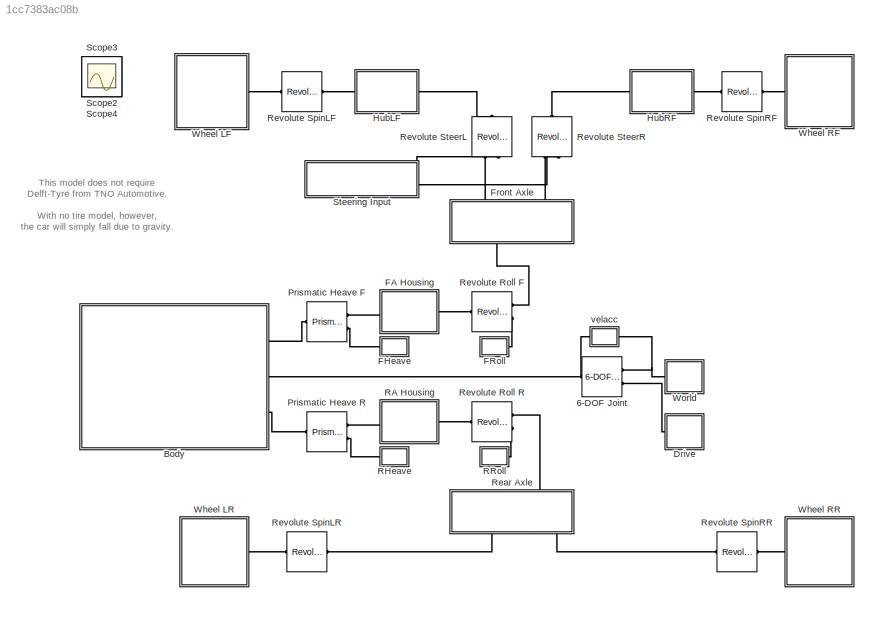
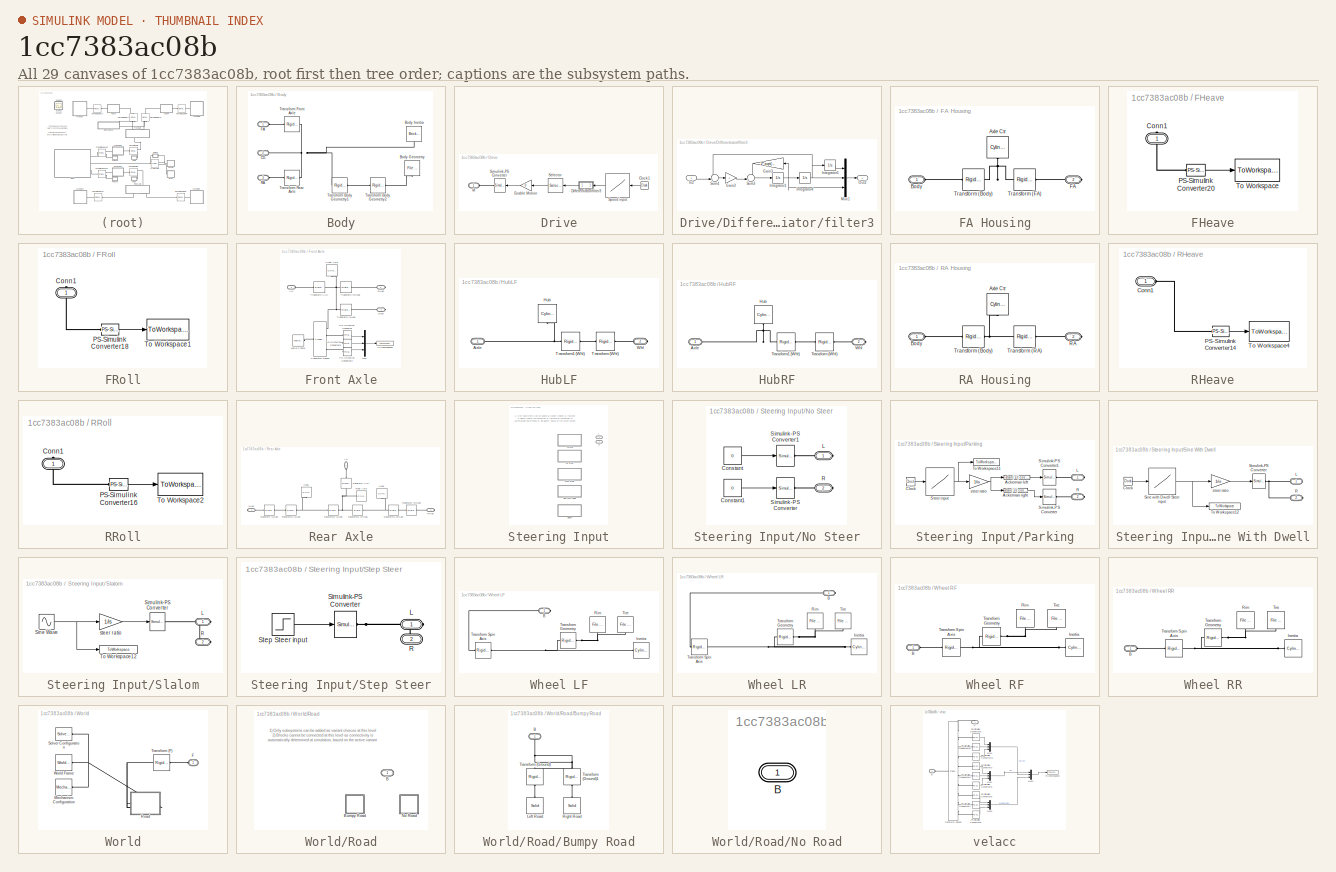
[diagram: thumbnail index - all 29 canvases of the model, root first then tree order]
MODEL slx_1cc7383ac08b
KIND model
CONFIG AbsTol = 1e-4
CONFIG EnableMultiTasking = on
CONFIG FixedStep = auto
CONFIG MaxStep = 0.01
CONFIG MinStep = auto
CONFIG PostLoadFcn = Configure_TNO_Tire_Test('handling');
CONFIG RelTol = 1e-4
CONFIG SampleTimeConstraint = Unconstrained
CONFIG Solver = ode15s
CONFIG SolverName = ode15s
CONFIG StartTime = 0.0
CONFIG StopTime = 10
BLOCK [Reference] 6-DOF Joint  REF=sm_lib/Joints/6-DOF Joint
  Ports = [0, 0, 0, 0, 0, 2, 1]
  SourceBlock = sm_lib/Joints/6-DOF Joint
  SourceProductBaseCode = MS
  SourceProductName = Simscape Multibody
  SourceType = 6-DOF Joint
BLOCK [SubSystem] Body
  Ports = [0, 0, 0, 0, 0, 3]
  RequestExecContextInheritance = off
BLOCK [Reference] Body/Body Geometry  REF=sm_lib/Body Elements/File Solid
  Ports = [0, 0, 0, 0, 0, 0, 1]
  SourceBlock = sm_lib/Body Elements/File Solid
  SourceProductBaseCode = MS
  SourceProductName = Simscape Multibody
  SourceType = File Solid
BLOCK [Reference] Body/Body Inertia  REF=sm_lib/Body Elements/Brick Solid
  Ports = [0, 0, 0, 0, 0, 0, 1]
  SourceBlock = sm_lib/Body Elements/Brick Solid
  SourceProductBaseCode = MS
  SourceProductName = Simscape Multibody
  SourceType = Brick Solid
BLOCK [PMIOPort] Body/CG
  Port = 2
  Side = Left
BLOCK [PMIOPort] Body/FA
  Side = Left
BLOCK [PMIOPort] Body/RA
  Port = 3
  Side = Left
BLOCK [Reference] Body/Transform Body Geometry1  REF=sm_lib/Frames and
Transforms/Rigid
Transform
  Ports = [0, 0, 0, 0, 0, 1, 1]
  SourceBlock = sm_lib/Frames and\nTransforms/Rigid\nTransform
  SourceProductBaseCode = MS
  SourceProductName = Simscape Multibody
  SourceType = Rigid\nTransform
BLOCK [Reference] Body/Transform Body Geometry2  REF=sm_lib/Frames and
Transforms/Rigid
Transform
  Ports = [0, 0, 0, 0, 0, 1, 1]
  SourceBlock = sm_lib/Frames and\nTransforms/Rigid\nTransform
  SourceProductBaseCode = MS
  SourceProductName = Simscape Multibody
  SourceType = Rigid\nTransform
BLOCK [Reference] Body/Transform Front Axle  REF=sm_lib/Frames and
Transforms/Rigid
Transform
  Ports = [0, 0, 0, 0, 0, 1, 1]
  SourceBlock = sm_lib/Frames and\nTransforms/Rigid\nTransform
  SourceProductBaseCode = MS
  SourceProductName = Simscape Multibody
  SourceType = Rigid\nTransform
BLOCK [Reference] Body/Transform Rear Axle  REF=sm_lib/Frames and
Transforms/Rigid
Transform
  Ports = [0, 0, 0, 0, 0, 1, 1]
  SourceBlock = sm_lib/Frames and\nTransforms/Rigid\nTransform
  SourceProductBaseCode = MS
  SourceProductName = Simscape Multibody
  SourceType = Rigid\nTransform
BLOCK [SubSystem] Drive
  Ports = [0, 0, 0, 0, 0, 1]
  RequestExecContextInheritance = off
BLOCK [Clock] Drive/Clock1
BLOCK [SubSystem] Drive/Differentiator//filter3
  Ports = [1, 1]
  RequestExecContextInheritance = off
BLOCK [Gain] Drive/Differentiator//filter3/Gain2
  Gain = c
BLOCK [Gain] Drive/Differentiator//filter3/Gain3
  Gain = 2*sqrt(c)
BLOCK [Inport] Drive/Differentiator//filter3/In2
  IconDisplay = Port number
BLOCK [Integrator] Drive/Differentiator//filter3/Integrator1
  Ports = [1, 1]
BLOCK [Integrator] Drive/Differentiator//filter3/Integrator4
  Ports = [1, 1]
BLOCK [Integrator] Drive/Differentiator//filter3/Integrator5
  InitialCondition = -1.5
  Ports = [1, 1]
BLOCK [Mux] Drive/Differentiator//filter3/Mux1
  DisplayOption = bar
  Inputs = 3
  Ports = [3, 1]
BLOCK [Outport] Drive/Differentiator//filter3/Out2
  IconDisplay = Port number
BLOCK [Sum] Drive/Differentiator//filter3/Sum3
  IconShape = round
  InputSameDT = off
  Inputs = -+|
  OutDataTypeStr = Inherit: Inherit via internal rule
  Ports = [2, 1]
BLOCK [Sum] Drive/Differentiator//filter3/Sum4
  IconShape = round
  InputSameDT = off
  Inputs = -+|
  OutDataTypeStr = Inherit: Inherit via internal rule
  Ports = [2, 1]
BLOCK [Gain] Drive/Enable Motion
  Gain = 0
  OutDataTypeStr = Inherit: Inherit via internal rule
  ParamDataTypeStr = Inherit: Inherit via internal rule
  SaturateOnIntegerOverflow = off
BLOCK [PMIOPort] Drive/M
  Side = Left
BLOCK [Selector] Drive/Selector
  IndexOptions = Index vector (dialog)
  Indices = [1]
  InputPortWidth = 3
  OutputSizes = 1
  Ports = [1, 1]
BLOCK [Reference] Drive/Simulink-PS Converter  REF=nesl_utility/Simulink-PS
Converter
  Ports = [1, 0, 0, 0, 0, 0, 1]
  SourceBlock = nesl_utility/Simulink-PS\nConverter
  SourceProductBaseCode = SS
  SourceProductName = Simscape
  SourceType = Simulink-PS\nConverter
BLOCK [Lookup] Drive/Speed input
  InputValues = tvxset
  SaturateOnIntegerOverflow = off
  Table = vxset
BLOCK [SubSystem] FA Housing
  Ports = [0, 0, 0, 0, 0, 1, 1]
  RequestExecContextInheritance = off
BLOCK [Reference] FA Housing/Axle Ctr  REF=sm_lib/Body Elements/Cylindrical Solid
  Ports = [0, 0, 0, 0, 0, 0, 1]
  SourceBlock = sm_lib/Body Elements/Cylindrical Solid
  SourceProductBaseCode = MS
  SourceProductName = Simscape Multibody
  SourceType = Cylindrical Solid
BLOCK [PMIOPort] FA Housing/Body
  Side = Left
BLOCK [PMIOPort] FA Housing/FA
  Port = 2
  Side = Right
BLOCK [Reference] FA Housing/Transform (Body)  REF=sm_lib/Frames and
Transforms/Rigid
Transform
  Ports = [0, 0, 0, 0, 0, 1, 1]
  SourceBlock = sm_lib/Frames and\nTransforms/Rigid\nTransform
  SourceProductBaseCode = MS
  SourceProductName = Simscape Multibody
  SourceType = Rigid\nTransform
BLOCK [Reference] FA Housing/Transform (FA)  REF=sm_lib/Frames and
Transforms/Rigid
Transform
  Ports = [0, 0, 0, 0, 0, 1, 1]
  SourceBlock = sm_lib/Frames and\nTransforms/Rigid\nTransform
  SourceProductBaseCode = MS
  SourceProductName = Simscape Multibody
  SourceType = Rigid\nTransform
BLOCK [SubSystem] FHeave
  Ports = [0, 0, 0, 0, 0, 0, 1]
  RequestExecContextInheritance = off
BLOCK [PMIOPort] FHeave/Conn1
  Side = Right
BLOCK [Reference] FHeave/PS-Simulink Converter20  REF=nesl_utility/PS-Simulink
Converter
  Ports = [0, 1, 0, 0, 0, 1]
  SourceBlock = nesl_utility/PS-Simulink\nConverter
  SourceProductBaseCode = SS
  SourceProductName = Simscape
  SourceType = PS-Simulink\nConverter
BLOCK [ToWorkspace] FHeave/To Workspace
  MaxDataPoints = inf
  Ports = [1]
  SampleTime = -1
  VariableName = FAheave
BLOCK [SubSystem] FRoll
  Ports = [0, 0, 0, 0, 0, 0, 1]
  RequestExecContextInheritance = off
BLOCK [PMIOPort] FRoll/Conn1
  Side = Right
BLOCK [Reference] FRoll/PS-Simulink Converter18  REF=nesl_utility/PS-Simulink
Converter
  Ports = [0, 1, 0, 0, 0, 1]
  SourceBlock = nesl_utility/PS-Simulink\nConverter
  SourceProductBaseCode = SS
  SourceProductName = Simscape
  SourceType = PS-Simulink\nConverter
BLOCK [ToWorkspace] FRoll/To Workspace1
  MaxDataPoints = inf
  Ports = [1]
  SampleTime = -1
  VariableName = FAroll
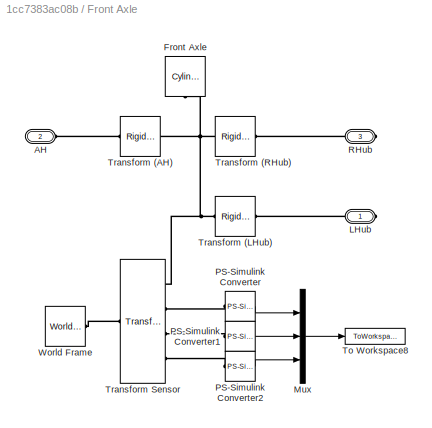
BLOCK [SubSystem] Front Axle
  Ports = [0, 0, 0, 0, 0, 1, 2]
  RequestExecContextInheritance = off
BLOCK [PMIOPort] Front Axle/AH
  Port = 2
  Side = Left
BLOCK [Reference] Front Axle/Front Axle  REF=sm_lib/Body Elements/Cylindrical Solid
  Ports = [0, 0, 0, 0, 0, 0, 1]
  SourceBlock = sm_lib/Body Elements/Cylindrical Solid
  SourceProductBaseCode = MS
  SourceProductName = Simscape Multibody
  SourceType = Cylindrical Solid
BLOCK [PMIOPort] Front Axle/LHub
  Side = Right
BLOCK [Mux] Front Axle/Mux
  DisplayOption = bar
  Inputs = 3
  Ports = [3, 1]
BLOCK [Reference] Front Axle/PS-Simulink Converter  REF=nesl_utility/PS-Simulink
Converter
  Ports = [0, 1, 0, 0, 0, 1]
  SourceBlock = nesl_utility/PS-Simulink\nConverter
  SourceProductBaseCode = SS
  SourceProductName = Simscape
  SourceType = PS-Simulink\nConverter
BLOCK [Reference] Front Axle/PS-Simulink Converter1  REF=nesl_utility/PS-Simulink
Converter
  Ports = [0, 1, 0, 0, 0, 1]
  SourceBlock = nesl_utility/PS-Simulink\nConverter
  SourceProductBaseCode = SS
  SourceProductName = Simscape
  SourceType = PS-Simulink\nConverter
BLOCK [Reference] Front Axle/PS-Simulink Converter2  REF=nesl_utility/PS-Simulink
Converter
  Ports = [0, 1, 0, 0, 0, 1]
  SourceBlock = nesl_utility/PS-Simulink\nConverter
  SourceProductBaseCode = SS
  SourceProductName = Simscape
  SourceType = PS-Simulink\nConverter
BLOCK [PMIOPort] Front Axle/RHub
  Port = 3
  Side = Right
BLOCK [ToWorkspace] Front Axle/To Workspace8
  MaxDataPoints = inf
  Ports = [1]
  SampleTime = -1
  VariableName = FA
BLOCK [Reference] Front Axle/Transform (AH)  REF=sm_lib/Frames and
Transforms/Rigid
Transform
  Ports = [0, 0, 0, 0, 0, 1, 1]
  SourceBlock = sm_lib/Frames and\nTransforms/Rigid\nTransform
  SourceProductBaseCode = MS
  SourceProductName = Simscape Multibody
  SourceType = Rigid\nTransform
BLOCK [Reference] Front Axle/Transform (LHub)  REF=sm_lib/Frames and
Transforms/Rigid
Transform
  Ports = [0, 0, 0, 0, 0, 1, 1]
  SourceBlock = sm_lib/Frames and\nTransforms/Rigid\nTransform
  SourceProductBaseCode = MS
  SourceProductName = Simscape Multibody
  SourceType = Rigid\nTransform
BLOCK [Reference] Front Axle/Transform (RHub)  REF=sm_lib/Frames and
Transforms/Rigid
Transform
  Ports = [0, 0, 0, 0, 0, 1, 1]
  SourceBlock = sm_lib/Frames and\nTransforms/Rigid\nTransform
  SourceProductBaseCode = MS
  SourceProductName = Simscape Multibody
  SourceType = Rigid\nTransform
BLOCK [Reference] Front Axle/Transform Sensor  REF=sm_lib/Frames and
Transforms/Transform
Sensor
  Ports = [0, 0, 0, 0, 0, 1, 4]
  SourceBlock = sm_lib/Frames and\nTransforms/Transform\nSensor
  SourceProductBaseCode = MS
  SourceProductName = Simscape Multibody
  SourceType = Transform\nSensor
BLOCK [Reference] Front Axle/World Frame  REF=sm_lib/Frames and
Transforms/World Frame
  Ports = [0, 0, 0, 0, 0, 0, 1]
  SourceBlock = sm_lib/Frames and\nTransforms/World Frame
  SourceProductBaseCode = MS
  SourceProductName = Simscape Multibody
  SourceType = World Frame
BLOCK [SubSystem] HubLF
  Ports = [0, 0, 0, 0, 0, 1, 1]
  RequestExecContextInheritance = off
BLOCK [PMIOPort] HubLF/Axle
  Side = Left
BLOCK [Reference] HubLF/Hub  REF=sm_lib/Body Elements/Cylindrical Solid
  Ports = [0, 0, 0, 0, 0, 0, 1]
  SourceBlock = sm_lib/Body Elements/Cylindrical Solid
  SourceProductBaseCode = MS
  SourceProductName = Simscape Multibody
  SourceType = Cylindrical Solid
BLOCK [Reference] HubLF/Transform (Whl)  REF=sm_lib/Frames and
Transforms/Rigid
Transform
  Ports = [0, 0, 0, 0, 0, 1, 1]
  SourceBlock = sm_lib/Frames and\nTransforms/Rigid\nTransform
  SourceProductBaseCode = MS
  SourceProductName = Simscape Multibody
  SourceType = Rigid\nTransform
BLOCK [Reference] HubLF/Transform1 (Whl)  REF=sm_lib/Frames and
Transforms/Rigid
Transform
  Ports = [0, 0, 0, 0, 0, 1, 1]
  SourceBlock = sm_lib/Frames and\nTransforms/Rigid\nTransform
  SourceProductBaseCode = MS
  SourceProductName = Simscape Multibody
  SourceType = Rigid\nTransform
BLOCK [PMIOPort] HubLF/Whl
  Port = 2
  Side = Right
BLOCK [SubSystem] HubRF
  Ports = [0, 0, 0, 0, 0, 1, 1]
  RequestExecContextInheritance = off
BLOCK [PMIOPort] HubRF/Axle
  Side = Left
BLOCK [Reference] HubRF/Hub  REF=sm_lib/Body Elements/Cylindrical Solid
  Ports = [0, 0, 0, 0, 0, 0, 1]
  SourceBlock = sm_lib/Body Elements/Cylindrical Solid
  SourceProductBaseCode = MS
  SourceProductName = Simscape Multibody
  SourceType = Cylindrical Solid
BLOCK [Reference] HubRF/Transform (Whl)  REF=sm_lib/Frames and
Transforms/Rigid
Transform
  Ports = [0, 0, 0, 0, 0, 1, 1]
  SourceBlock = sm_lib/Frames and\nTransforms/Rigid\nTransform
  SourceProductBaseCode = MS
  SourceProductName = Simscape Multibody
  SourceType = Rigid\nTransform
BLOCK [Reference] HubRF/Transform1 (Whl)  REF=sm_lib/Frames and
Transforms/Rigid
Transform
  Ports = [0, 0, 0, 0, 0, 1, 1]
  SourceBlock = sm_lib/Frames and\nTransforms/Rigid\nTransform
  SourceProductBaseCode = MS
  SourceProductName = Simscape Multibody
  SourceType = Rigid\nTransform
BLOCK [PMIOPort] HubRF/Whl
  Port = 2
  Side = Right
BLOCK [Reference] Prismatic Heave F  REF=sm_lib/Joints/Prismatic
Joint
  Ports = [0, 0, 0, 0, 0, 1, 2]
  SourceBlock = sm_lib/Joints/Prismatic\nJoint
  SourceProductBaseCode = MS
  SourceProductName = Simscape Multibody
  SourceType = Prismatic\nJoint
BLOCK [Reference] Prismatic Heave R  REF=sm_lib/Joints/Prismatic
Joint
  Ports = [0, 0, 0, 0, 0, 1, 2]
  SourceBlock = sm_lib/Joints/Prismatic\nJoint
  SourceProductBaseCode = MS
  SourceProductName = Simscape Multibody
  SourceType = Prismatic\nJoint
BLOCK [SubSystem] RA Housing
  Ports = [0, 0, 0, 0, 0, 1, 1]
  RequestExecContextInheritance = off
BLOCK [Reference] RA Housing/Axle Ctr  REF=sm_lib/Body Elements/Cylindrical Solid
  Ports = [0, 0, 0, 0, 0, 0, 1]
  SourceBlock = sm_lib/Body Elements/Cylindrical Solid
  SourceProductBaseCode = MS
  SourceProductName = Simscape Multibody
  SourceType = Cylindrical Solid
BLOCK [PMIOPort] RA Housing/Body
  Side = Left
BLOCK [PMIOPort] RA Housing/RA
  Port = 2
  Side = Right
BLOCK [Reference] RA Housing/Transform (Body)  REF=sm_lib/Frames and
Transforms/Rigid
Transform
  Ports = [0, 0, 0, 0, 0, 1, 1]
  SourceBlock = sm_lib/Frames and\nTransforms/Rigid\nTransform
  SourceProductBaseCode = MS
  SourceProductName = Simscape Multibody
  SourceType = Rigid\nTransform
BLOCK [Reference] RA Housing/Transform (RA)  REF=sm_lib/Frames and
Transforms/Rigid
Transform
  Ports = [0, 0, 0, 0, 0, 1, 1]
  SourceBlock = sm_lib/Frames and\nTransforms/Rigid\nTransform
  SourceProductBaseCode = MS
  SourceProductName = Simscape Multibody
  SourceType = Rigid\nTransform
BLOCK [SubSystem] RHeave
  Ports = [0, 0, 0, 0, 0, 1]
  RequestExecContextInheritance = off
BLOCK [PMIOPort] RHeave/Conn1
  Side = Left
BLOCK [Reference] RHeave/PS-Simulink Converter14  REF=nesl_utility/PS-Simulink
Converter
  Ports = [0, 1, 0, 0, 0, 1]
  SourceBlock = nesl_utility/PS-Simulink\nConverter
  SourceProductBaseCode = SS
  SourceProductName = Simscape
  SourceType = PS-Simulink\nConverter
BLOCK [ToWorkspace] RHeave/To Workspace4
  MaxDataPoints = inf
  Ports = [1]
  SampleTime = -1
  VariableName = RAheave
BLOCK [SubSystem] RRoll
  Ports = [0, 0, 0, 0, 0, 0, 1]
  RequestExecContextInheritance = off
BLOCK [PMIOPort] RRoll/Conn1
  Side = Right
BLOCK [Reference] RRoll/PS-Simulink Converter16  REF=nesl_utility/PS-Simulink
Converter
  Ports = [0, 1, 0, 0, 0, 1]
  SourceBlock = nesl_utility/PS-Simulink\nConverter
  SourceProductBaseCode = SS
  SourceProductName = Simscape
  SourceType = PS-Simulink\nConverter
BLOCK [ToWorkspace] RRoll/To Workspace2
  MaxDataPoints = inf
  Ports = [1]
  SampleTime = -1
  VariableName = RAroll
BLOCK [SubSystem] Rear Axle
  Ports = [0, 0, 0, 0, 0, 1, 2]
  RequestExecContextInheritance = off
BLOCK [PMIOPort] Rear Axle/AH
  Side = Left
BLOCK [Reference] Rear Axle/Hub1  REF=sm_lib/Body Elements/Cylindrical Solid
  Ports = [0, 0, 0, 0, 0, 0, 1]
  SourceBlock = sm_lib/Body Elements/Cylindrical Solid
  SourceProductBaseCode = MS
  SourceProductName = Simscape Multibody
  SourceType = Cylindrical Solid
BLOCK [Reference] Rear Axle/Hub2  REF=sm_lib/Body Elements/Cylindrical Solid
  Ports = [0, 0, 0, 0, 0, 0, 1]
  SourceBlock = sm_lib/Body Elements/Cylindrical Solid
  SourceProductBaseCode = MS
  SourceProductName = Simscape Multibody
  SourceType = Cylindrical Solid
BLOCK [PMIOPort] Rear Axle/LHub
  Port = 2
  Side = Right
BLOCK [PMIOPort] Rear Axle/RHub
  Port = 3
  Side = Right
BLOCK [Reference] Rear Axle/Rear Axle  REF=sm_lib/Body Elements/Cylindrical Solid
  Ports = [0, 0, 0, 0, 0, 0, 1]
  SourceBlock = sm_lib/Body Elements/Cylindrical Solid
  SourceProductBaseCode = MS
  SourceProductName = Simscape Multibody
  SourceType = Cylindrical Solid
BLOCK [Reference] Rear Axle/Transform (AH)  REF=sm_lib/Frames and
Transforms/Rigid
Transform
  Ports = [0, 0, 0, 0, 0, 1, 1]
  SourceBlock = sm_lib/Frames and\nTransforms/Rigid\nTransform
  SourceProductBaseCode = MS
  SourceProductName = Simscape Multibody
  SourceType = Rigid\nTransform
BLOCK [Reference] Rear Axle/Transform (LHub)  REF=sm_lib/Frames and
Transforms/Rigid
Transform
  Ports = [0, 0, 0, 0, 0, 1, 1]
  SourceBlock = sm_lib/Frames and\nTransforms/Rigid\nTransform
  SourceProductBaseCode = MS
  SourceProductName = Simscape Multibody
  SourceType = Rigid\nTransform
BLOCK [Reference] Rear Axle/Transform (RHub)  REF=sm_lib/Frames and
Transforms/Rigid
Transform
  Ports = [0, 0, 0, 0, 0, 1, 1]
  SourceBlock = sm_lib/Frames and\nTransforms/Rigid\nTransform
  SourceProductBaseCode = MS
  SourceProductName = Simscape Multibody
  SourceType = Rigid\nTransform
BLOCK [Reference] Rear Axle/Transform1 (LHub)  REF=sm_lib/Frames and
Transforms/Rigid
Transform
  Ports = [0, 0, 0, 0, 0, 1, 1]
  SourceBlock = sm_lib/Frames and\nTransforms/Rigid\nTransform
  SourceProductBaseCode = MS
  SourceProductName = Simscape Multibody
  SourceType = Rigid\nTransform
BLOCK [Reference] Rear Axle/Transform1 (RHub)  REF=sm_lib/Frames and
Transforms/Rigid
Transform
  Ports = [0, 0, 0, 0, 0, 1, 1]
  SourceBlock = sm_lib/Frames and\nTransforms/Rigid\nTransform
  SourceProductBaseCode = MS
  SourceProductName = Simscape Multibody
  SourceType = Rigid\nTransform
BLOCK [Reference] Rear Axle/Transform2 (LHub)  REF=sm_lib/Frames and
Transforms/Rigid
Transform
  Ports = [0, 0, 0, 0, 0, 1, 1]
  SourceBlock = sm_lib/Frames and\nTransforms/Rigid\nTransform
  SourceProductBaseCode = MS
  SourceProductName = Simscape Multibody
  SourceType = Rigid\nTransform
BLOCK [Reference] Rear Axle/Transform2 (RHub)  REF=sm_lib/Frames and
Transforms/Rigid
Transform
  Ports = [0, 0, 0, 0, 0, 1, 1]
  SourceBlock = sm_lib/Frames and\nTransforms/Rigid\nTransform
  SourceProductBaseCode = MS
  SourceProductName = Simscape Multibody
  SourceType = Rigid\nTransform
BLOCK [Reference] Revolute Roll F  REF=sm_lib/Joints/Revolute Joint
  Ports = [0, 0, 0, 0, 0, 1, 2]
  SourceBlock = sm_lib/Joints/Revolute Joint
  SourceProductBaseCode = MS
  SourceProductName = Simscape Multibody
  SourceType = Revolute Joint
BLOCK [Reference] Revolute Roll R  REF=sm_lib/Joints/Revolute Joint
  Ports = [0, 0, 0, 0, 0, 1, 2]
  SourceBlock = sm_lib/Joints/Revolute Joint
  SourceProductBaseCode = MS
  SourceProductName = Simscape Multibody
  SourceType = Revolute Joint
BLOCK [Reference] Revolute SpinLF  REF=sm_lib/Joints/Revolute Joint
  Ports = [0, 0, 0, 0, 0, 1, 1]
  SourceBlock = sm_lib/Joints/Revolute Joint
  SourceProductBaseCode = MS
  SourceProductName = Simscape Multibody
  SourceType = Revolute Joint
BLOCK [Reference] Revolute SpinLR  REF=sm_lib/Joints/Revolute Joint
  Ports = [0, 0, 0, 0, 0, 1, 1]
  SourceBlock = sm_lib/Joints/Revolute Joint
  SourceProductBaseCode = MS
  SourceProductName = Simscape Multibody
  SourceType = Revolute Joint
BLOCK [Reference] Revolute SpinRF  REF=sm_lib/Joints/Revolute Joint
  Ports = [0, 0, 0, 0, 0, 1, 1]
  SourceBlock = sm_lib/Joints/Revolute Joint
  SourceProductBaseCode = MS
  SourceProductName = Simscape Multibody
  SourceType = Revolute Joint
BLOCK [Reference] Revolute SpinRR  REF=sm_lib/Joints/Revolute Joint
  Ports = [0, 0, 0, 0, 0, 1, 1]
  SourceBlock = sm_lib/Joints/Revolute Joint
  SourceProductBaseCode = MS
  SourceProductName = Simscape Multibody
  SourceType = Revolute Joint
BLOCK [Reference] Revolute SteerL  REF=sm_lib/Joints/Revolute Joint
  Ports = [0, 0, 0, 0, 0, 2, 1]
  SourceBlock = sm_lib/Joints/Revolute Joint
  SourceProductBaseCode = MS
  SourceProductName = Simscape Multibody
  SourceType = Revolute Joint
BLOCK [Reference] Revolute SteerR  REF=sm_lib/Joints/Revolute Joint
  Ports = [0, 0, 0, 0, 0, 2, 1]
  SourceBlock = sm_lib/Joints/Revolute Joint
  SourceProductBaseCode = MS
  SourceProductName = Simscape Multibody
  SourceType = Revolute Joint
BLOCK [Scope] Scope2
  Floating = off
  IOType = viewer
  NumInputPorts = 1
  Ports = []
  ScopeSpecificationString = C++SS(StrPVP('Location','[1104, 222, 1428, 724]'),StrPVP('Open','off'),MxPVP('AxesTitles',54,'struct(''axes1'',''%<SignalLabel>'')'),StrPVP('ShowDataMarkers','off'),StrPVP('ShowLegends','off'),StrPVP('MaxDataPoints','7500'),StrPVP('LimitDataPoints','on'),StrPVP('DataFormat','Array'),StrPVP('Decimation','1'),StrPVP('BlockParamSampleInput','off'))
BLOCK [Scope] Scope3
  Floating = off
  IOType = viewer
  NumInputPorts = 1
  Ports = []
  ScopeSpecificationString = C++SS(StrPVP('Location','[744, 603, 1289, 864]'),StrPVP('Open','off'),StrPVP('ZoomMode','yonly'),MxPVP('AxesTitles',54,'struct(''axes1'',''%<SignalLabel>'')'),StrPVP('ShowDataMarkers','off'),StrPVP('ShowLegends','on'),StrPVP('SaveName','ScopeData1'),StrPVP('MaxDataPoints','7500'),StrPVP('LimitDataPoints','on'),StrPVP('DataFormat','Array'),StrPVP('Decimation','1'),StrPVP('BlockParamSampleInput','of...<+4ch>
BLOCK [Scope] Scope4
  Floating = off
  IOType = viewer
  NumInputPorts = 1
  Ports = []
  ScopeSpecificationString = C++SS(StrPVP('Location','[188, 365, 512, 604]'),StrPVP('Open','off'),MxPVP('AxesTitles',54,'struct(''axes1'',''%<SignalLabel>'')'),StrPVP('ShowDataMarkers','off'),StrPVP('ShowLegends','off'),StrPVP('SaveName','ScopeData2'),StrPVP('MaxDataPoints','7500'),StrPVP('LimitDataPoints','on'),StrPVP('DataFormat','Array'),StrPVP('Decimation','1'),StrPVP('BlockParamSampleInput','off'))
BLOCK [SubSystem] Steering Input
  LabelModeActiveChoice = StepSteer
  Ports = [0, 0, 0, 0, 0, 0, 2]
  RequestExecContextInheritance = off
  Variant = on
  VariantControlMode = Label
BLOCK [PMIOPort] Steering Input/L
  Side = Right
BLOCK [SubSystem] Steering Input/No Steer
  Ports = [0, 0, 0, 0, 0, 0, 2]
  RequestExecContextInheritance = off
  VariantControl = NoSteer
BLOCK [Constant] Steering Input/No Steer/Constant
  Value = 0
BLOCK [Constant] Steering Input/No Steer/Constant1
  Value = 0
BLOCK [PMIOPort] Steering Input/No Steer/L
  Side = Right
BLOCK [PMIOPort] Steering Input/No Steer/R
  Port = 2
  Side = Right
BLOCK [Reference] Steering Input/No Steer/Simulink-PS Converter  REF=nesl_utility/Simulink-PS
Converter
  Ports = [1, 0, 0, 0, 0, 0, 1]
  SourceBlock = nesl_utility/Simulink-PS\nConverter
  SourceProductBaseCode = SS
  SourceProductName = Simscape
  SourceType = Simulink-PS\nConverter
BLOCK [Reference] Steering Input/No Steer/Simulink-PS Converter1  REF=nesl_utility/Simulink-PS
Converter
  Ports = [1, 0, 0, 0, 0, 0, 1]
  SourceBlock = nesl_utility/Simulink-PS\nConverter
  SourceProductBaseCode = SS
  SourceProductName = Simscape
  SourceType = Simulink-PS\nConverter
BLOCK [SubSystem] Steering Input/Parking
  Ports = [0, 0, 0, 0, 0, 0, 2]
  RequestExecContextInheritance = off
  VariantControl = Parking
BLOCK [Fcn] Steering Input/Parking/Ackerman left
  Expr = atan( 1/( cos(u+eps)/sin(u+eps) - 1.6/(2*3) ) )
BLOCK [Fcn] Steering Input/Parking/Ackerman right
  Expr = atan( 1/( cos(u+eps)/sin(u+eps) + 1.6/(2*3) ) )
BLOCK [Clock] Steering Input/Parking/Clock
BLOCK [PMIOPort] Steering Input/Parking/L
  Side = Right
BLOCK [PMIOPort] Steering Input/Parking/R
  Port = 2
  Side = Right
BLOCK [Reference] Steering Input/Parking/Simulink-PS Converter  REF=nesl_utility/Simulink-PS
Converter
  Ports = [1, 0, 0, 0, 0, 0, 1]
  SourceBlock = nesl_utility/Simulink-PS\nConverter
  SourceProductBaseCode = SS
  SourceProductName = Simscape
  SourceType = Simulink-PS\nConverter
BLOCK [Reference] Steering Input/Parking/Simulink-PS Converter1  REF=nesl_utility/Simulink-PS
Converter
  Ports = [1, 0, 0, 0, 0, 0, 1]
  SourceBlock = nesl_utility/Simulink-PS\nConverter
  SourceProductBaseCode = SS
  SourceProductName = Simscape
  SourceType = Simulink-PS\nConverter
BLOCK [Lookup] Steering Input/Parking/Steer input
  InputValues = tparking
  SaturateOnIntegerOverflow = off
  Table = angparking
BLOCK [ToWorkspace] Steering Input/Parking/To Workspace11
  MaxDataPoints = inf
  Ports = [1]
  SampleTime = -1
  VariableName = handwheel
BLOCK [Gain] Steering Input/Parking/steer ratio
  Gain = 1/is
  OutDataTypeStr = Inherit: Inherit via internal rule
  ParamDataTypeStr = Inherit: Inherit via internal rule
  SaturateOnIntegerOverflow = off
BLOCK [PMIOPort] Steering Input/R
  Port = 2
  Side = Right
BLOCK [SubSystem] Steering Input/Sine With Dwell
  Ports = [0, 0, 0, 0, 0, 0, 2]
  RequestExecContextInheritance = off
  VariantControl = SineWithDwell
BLOCK [Clock] Steering Input/Sine With Dwell/Clock
BLOCK [PMIOPort] Steering Input/Sine With Dwell/L
  Side = Right
BLOCK [PMIOPort] Steering Input/Sine With Dwell/R
  Port = 2
  Side = Right
BLOCK [Reference] Steering Input/Sine With Dwell/Simulink-PS Converter  REF=nesl_utility/Simulink-PS
Converter
  Ports = [1, 0, 0, 0, 0, 0, 1]
  SourceBlock = nesl_utility/Simulink-PS\nConverter
  SourceProductBaseCode = SS
  SourceProductName = Simscape
  SourceType = Simulink-PS\nConverter
BLOCK [Lookup] Steering Input/Sine With Dwell/Sine with Dwell Steer input
  InputValues = tswd
  SaturateOnIntegerOverflow = off
  Table = delta
BLOCK [ToWorkspace] Steering Input/Sine With Dwell/To Workspace12
  MaxDataPoints = inf
  Ports = [1]
  SampleTime = -1
  VariableName = handwheel
BLOCK [Gain] Steering Input/Sine With Dwell/steer ratio
  Gain = 1/is
  OutDataTypeStr = Inherit: Inherit via internal rule
  ParamDataTypeStr = Inherit: Inherit via internal rule
  SaturateOnIntegerOverflow = off
BLOCK [SubSystem] Steering Input/Slalom
  Ports = [0, 0, 0, 0, 0, 0, 2]
  RequestExecContextInheritance = off
  VariantControl = Slalom
BLOCK [PMIOPort] Steering Input/Slalom/L
  Side = Right
BLOCK [PMIOPort] Steering Input/Slalom/R
  Port = 2
  Side = Right
BLOCK [Reference] Steering Input/Slalom/Simulink-PS Converter  REF=nesl_utility/Simulink-PS
Converter
  Ports = [1, 0, 0, 0, 0, 0, 1]
  SourceBlock = nesl_utility/Simulink-PS\nConverter
  SourceProductBaseCode = SS
  SourceProductName = Simscape
  SourceType = Simulink-PS\nConverter
BLOCK [Sin] Steering Input/Slalom/Sine Wave
  Amplitude = 15*(pi/180)
  Frequency = 4*pi/10
  Phase = pi/2+0.03
  Ports = [0, 1]
  SampleTime = 0
BLOCK [ToWorkspace] Steering Input/Slalom/To Workspace12
  MaxDataPoints = inf
  Ports = [1]
  SampleTime = -1
  VariableName = handwheel
BLOCK [Gain] Steering Input/Slalom/steer ratio
  Gain = 1/is
  OutDataTypeStr = Inherit: Inherit via internal rule
  ParamDataTypeStr = Inherit: Inherit via internal rule
  SaturateOnIntegerOverflow = off
BLOCK [SubSystem] Steering Input/Step Steer
  Ports = [0, 0, 0, 0, 0, 0, 2]
  RequestExecContextInheritance = off
  VariantControl = StepSteer
BLOCK [PMIOPort] Steering Input/Step Steer/L
  Side = Right
BLOCK [PMIOPort] Steering Input/Step Steer/R
  Port = 2
  Side = Right
BLOCK [Reference] Steering Input/Step Steer/Simulink-PS Converter  REF=nesl_utility/Simulink-PS
Converter
  Ports = [1, 0, 0, 0, 0, 0, 1]
  SourceBlock = nesl_utility/Simulink-PS\nConverter
  SourceProductBaseCode = SS
  SourceProductName = Simscape
  SourceType = Simulink-PS\nConverter
BLOCK [Step] Steering Input/Step Steer/Step Steer input
  After = 10*pi/180
  SampleTime = 0
  Time = 3
BLOCK [SubSystem] Wheel LF
  Ports = [0, 0, 0, 0, 0, 0, 1]
  RequestExecContextInheritance = off
BLOCK [PMIOPort] Wheel LF/B
  Side = Right
BLOCK [Reference] Wheel LF/Inertia  REF=sm_lib/Body Elements/Cylindrical Solid
  Ports = [0, 0, 0, 0, 0, 0, 1]
  SourceBlock = sm_lib/Body Elements/Cylindrical Solid
  SourceProductBaseCode = MS
  SourceProductName = Simscape Multibody
  SourceType = Cylindrical Solid
BLOCK [Reference] Wheel LF/Rim  REF=sm_lib/Body Elements/File Solid
  Ports = [0, 0, 0, 0, 0, 0, 1]
  SourceBlock = sm_lib/Body Elements/File Solid
  SourceProductBaseCode = MS
  SourceProductName = Simscape Multibody
  SourceType = File Solid
BLOCK [Reference] Wheel LF/Tire  REF=sm_lib/Body Elements/File Solid
  Ports = [0, 0, 0, 0, 0, 0, 1]
  SourceBlock = sm_lib/Body Elements/File Solid
  SourceProductBaseCode = MS
  SourceProductName = Simscape Multibody
  SourceType = File Solid
BLOCK [Reference] Wheel LF/Transform Geometry  REF=sm_lib/Frames and
Transforms/Rigid
Transform
  Ports = [0, 0, 0, 0, 0, 1, 1]
  SourceBlock = sm_lib/Frames and\nTransforms/Rigid\nTransform
  SourceProductBaseCode = MS
  SourceProductName = Simscape Multibody
  SourceType = Rigid\nTransform
BLOCK [Reference] Wheel LF/Transform Spin Axis  REF=sm_lib/Frames and
Transforms/Rigid
Transform
  Ports = [0, 0, 0, 0, 0, 1, 1]
  SourceBlock = sm_lib/Frames and\nTransforms/Rigid\nTransform
  SourceProductBaseCode = MS
  SourceProductName = Simscape Multibody
  SourceType = Rigid\nTransform
BLOCK [SubSystem] Wheel LR
  Ports = [0, 0, 0, 0, 0, 0, 1]
  RequestExecContextInheritance = off
BLOCK [PMIOPort] Wheel LR/B
  Side = Right
BLOCK [Reference] Wheel LR/Inertia  REF=sm_lib/Body Elements/Cylindrical Solid
  Ports = [0, 0, 0, 0, 0, 0, 1]
  SourceBlock = sm_lib/Body Elements/Cylindrical Solid
  SourceProductBaseCode = MS
  SourceProductName = Simscape Multibody
  SourceType = Cylindrical Solid
BLOCK [Reference] Wheel LR/Rim  REF=sm_lib/Body Elements/File Solid
  Ports = [0, 0, 0, 0, 0, 0, 1]
  SourceBlock = sm_lib/Body Elements/File Solid
  SourceProductBaseCode = MS
  SourceProductName = Simscape Multibody
  SourceType = File Solid
BLOCK [Reference] Wheel LR/Tire  REF=sm_lib/Body Elements/File Solid
  Ports = [0, 0, 0, 0, 0, 0, 1]
  SourceBlock = sm_lib/Body Elements/File Solid
  SourceProductBaseCode = MS
  SourceProductName = Simscape Multibody
  SourceType = File Solid
BLOCK [Reference] Wheel LR/Transform Geometry  REF=sm_lib/Frames and
Transforms/Rigid
Transform
  Ports = [0, 0, 0, 0, 0, 1, 1]
  SourceBlock = sm_lib/Frames and\nTransforms/Rigid\nTransform
  SourceProductBaseCode = MS
  SourceProductName = Simscape Multibody
  SourceType = Rigid\nTransform
BLOCK [Reference] Wheel LR/Transform Spin Axis  REF=sm_lib/Frames and
Transforms/Rigid
Transform
  Ports = [0, 0, 0, 0, 0, 1, 1]
  SourceBlock = sm_lib/Frames and\nTransforms/Rigid\nTransform
  SourceProductBaseCode = MS
  SourceProductName = Simscape Multibody
  SourceType = Rigid\nTransform
BLOCK [SubSystem] Wheel RF
  Ports = [0, 0, 0, 0, 0, 1]
  RequestExecContextInheritance = off
BLOCK [PMIOPort] Wheel RF/B
  Side = Left
BLOCK [Reference] Wheel RF/Inertia  REF=sm_lib/Body Elements/Cylindrical Solid
  Ports = [0, 0, 0, 0, 0, 0, 1]
  SourceBlock = sm_lib/Body Elements/Cylindrical Solid
  SourceProductBaseCode = MS
  SourceProductName = Simscape Multibody
  SourceType = Cylindrical Solid
BLOCK [Reference] Wheel RF/Rim  REF=sm_lib/Body Elements/File Solid
  Ports = [0, 0, 0, 0, 0, 0, 1]
  SourceBlock = sm_lib/Body Elements/File Solid
  SourceProductBaseCode = MS
  SourceProductName = Simscape Multibody
  SourceType = File Solid
BLOCK [Reference] Wheel RF/Tire  REF=sm_lib/Body Elements/File Solid
  Ports = [0, 0, 0, 0, 0, 0, 1]
  SourceBlock = sm_lib/Body Elements/File Solid
  SourceProductBaseCode = MS
  SourceProductName = Simscape Multibody
  SourceType = File Solid
BLOCK [Reference] Wheel RF/Transform Geometry  REF=sm_lib/Frames and
Transforms/Rigid
Transform
  Ports = [0, 0, 0, 0, 0, 1, 1]
  SourceBlock = sm_lib/Frames and\nTransforms/Rigid\nTransform
  SourceProductBaseCode = MS
  SourceProductName = Simscape Multibody
  SourceType = Rigid\nTransform
BLOCK [Reference] Wheel RF/Transform Spin Axis  REF=sm_lib/Frames and
Transforms/Rigid
Transform
  Ports = [0, 0, 0, 0, 0, 1, 1]
  SourceBlock = sm_lib/Frames and\nTransforms/Rigid\nTransform
  SourceProductBaseCode = MS
  SourceProductName = Simscape Multibody
  SourceType = Rigid\nTransform
BLOCK [SubSystem] Wheel RR
  Ports = [0, 0, 0, 0, 0, 1]
  RequestExecContextInheritance = off
BLOCK [PMIOPort] Wheel RR/B
  Side = Left
BLOCK [Reference] Wheel RR/Inertia  REF=sm_lib/Body Elements/Cylindrical Solid
  Ports = [0, 0, 0, 0, 0, 0, 1]
  SourceBlock = sm_lib/Body Elements/Cylindrical Solid
  SourceProductBaseCode = MS
  SourceProductName = Simscape Multibody
  SourceType = Cylindrical Solid
BLOCK [Reference] Wheel RR/Rim  REF=sm_lib/Body Elements/File Solid
  Ports = [0, 0, 0, 0, 0, 0, 1]
  SourceBlock = sm_lib/Body Elements/File Solid
  SourceProductBaseCode = MS
  SourceProductName = Simscape Multibody
  SourceType = File Solid
BLOCK [Reference] Wheel RR/Tire  REF=sm_lib/Body Elements/File Solid
  Ports = [0, 0, 0, 0, 0, 0, 1]
  SourceBlock = sm_lib/Body Elements/File Solid
  SourceProductBaseCode = MS
  SourceProductName = Simscape Multibody
  SourceType = File Solid
BLOCK [Reference] Wheel RR/Transform Geometry  REF=sm_lib/Frames and
Transforms/Rigid
Transform
  Ports = [0, 0, 0, 0, 0, 1, 1]
  SourceBlock = sm_lib/Frames and\nTransforms/Rigid\nTransform
  SourceProductBaseCode = MS
  SourceProductName = Simscape Multibody
  SourceType = Rigid\nTransform
BLOCK [Reference] Wheel RR/Transform Spin Axis  REF=sm_lib/Frames and
Transforms/Rigid
Transform
  Ports = [0, 0, 0, 0, 0, 1, 1]
  SourceBlock = sm_lib/Frames and\nTransforms/Rigid\nTransform
  SourceProductBaseCode = MS
  SourceProductName = Simscape Multibody
  SourceType = Rigid\nTransform
BLOCK [SubSystem] World
  Ports = [0, 0, 0, 0, 0, 1]
  RequestExecContextInheritance = off
BLOCK [PMIOPort] World/F
  Side = Left
BLOCK [Reference] World/Mechanism Configuration  REF=sm_lib/Utilities/Mechanism
Configuration
  Ports = [0, 0, 0, 0, 0, 0, 1]
  SourceBlock = sm_lib/Utilities/Mechanism\nConfiguration
  SourceProductBaseCode = MS
  SourceProductName = Simscape Multibody
  SourceType = Mechanism\nConfiguration
BLOCK [SubSystem] World/Road
  LabelModeActiveChoice = NoRoad
  Ports = [0, 0, 0, 0, 0, 0, 1]
  RequestExecContextInheritance = off
  Variant = on
  VariantControlMode = Label
BLOCK [PMIOPort] World/Road/B
  Side = Right
BLOCK [SubSystem] World/Road/Bumpy Road
  Ports = [0, 0, 0, 0, 0, 0, 1]
  RequestExecContextInheritance = off
  VariantControl = BumpyRoad
BLOCK [PMIOPort] World/Road/Bumpy Road/B
  Side = Right
BLOCK [Reference] World/Road/Bumpy Road/Left Road  REF=sm_lib/Body Elements/Solid
  Ports = [0, 0, 0, 0, 0, 0, 1]
  SourceBlock = sm_lib/Body Elements/Solid
  SourceProductBaseCode = MS
  SourceProductName = Simscape Multibody
  SourceType = Solid
BLOCK [Reference] World/Road/Bumpy Road/Right Road  REF=sm_lib/Body Elements/Solid
  Ports = [0, 0, 0, 0, 0, 0, 1]
  SourceBlock = sm_lib/Body Elements/Solid
  SourceProductBaseCode = MS
  SourceProductName = Simscape Multibody
  SourceType = Solid
BLOCK [Reference] World/Road/Bumpy Road/Transform (Ground)  REF=sm_lib/Frames and
Transforms/Rigid
Transform
  Ports = [0, 0, 0, 0, 0, 1, 1]
  SourceBlock = sm_lib/Frames and\nTransforms/Rigid\nTransform
  SourceProductBaseCode = MS
  SourceProductName = Simscape Multibody
  SourceType = Rigid\nTransform
BLOCK [Reference] World/Road/Bumpy Road/Transform (Ground)1  REF=sm_lib/Frames and
Transforms/Rigid
Transform
  Ports = [0, 0, 0, 0, 0, 1, 1]
  SourceBlock = sm_lib/Frames and\nTransforms/Rigid\nTransform
  SourceProductBaseCode = MS
  SourceProductName = Simscape Multibody
  SourceType = Rigid\nTransform
BLOCK [SubSystem] World/Road/No Road
  Ports = [0, 0, 0, 0, 0, 0, 1]
  RequestExecContextInheritance = off
  VariantControl = NoRoad
BLOCK [PMIOPort] World/Road/No Road/B
  Side = Right
BLOCK [Reference] World/Solver Configuration  REF=nesl_utility/Solver
Configuration
  Ports = [0, 0, 0, 0, 0, 0, 1]
  SourceBlock = nesl_utility/Solver\nConfiguration
  SourceProductBaseCode = SS
  SourceProductName = Simscape
  SourceType = Solver\nConfiguration
BLOCK [Reference] World/Transform (F)  REF=sm_lib/Frames and
Transforms/Rigid
Transform
  Ports = [0, 0, 0, 0, 0, 1, 1]
  SourceBlock = sm_lib/Frames and\nTransforms/Rigid\nTransform
  SourceProductBaseCode = MS
  SourceProductName = Simscape Multibody
  SourceType = Rigid\nTransform
BLOCK [Reference] World/World Frame  REF=sm_lib/Frames and
Transforms/World Frame
  Ports = [0, 0, 0, 0, 0, 0, 1]
  SourceBlock = sm_lib/Frames and\nTransforms/World Frame
  SourceProductBaseCode = MS
  SourceProductName = Simscape Multibody
  SourceType = World Frame
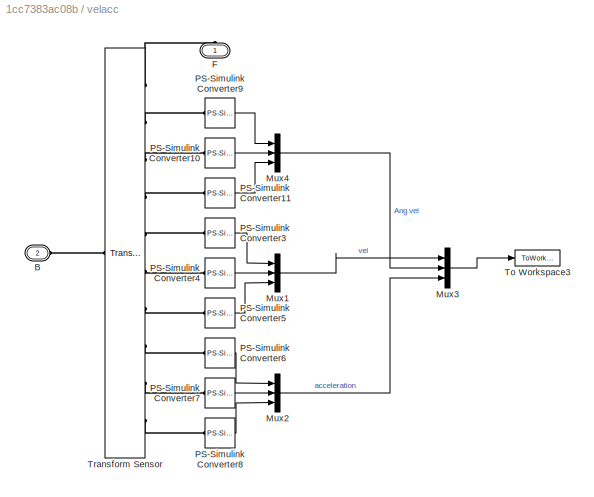
BLOCK [SubSystem] velacc
  Ports = [0, 0, 0, 0, 0, 1, 1]
  RequestExecContextInheritance = off
BLOCK [PMIOPort] velacc/B
  Port = 2
  Side = Left
BLOCK [PMIOPort] velacc/F
  Side = Right
BLOCK [Mux] velacc/Mux1
  DisplayOption = bar
  Inputs = 3
  Ports = [3, 1]
BLOCK [Mux] velacc/Mux2
  DisplayOption = bar
  Inputs = 3
  Ports = [3, 1]
BLOCK [Mux] velacc/Mux3
  DisplayOption = bar
  Inputs = 3
  Ports = [3, 1]
BLOCK [Mux] velacc/Mux4
  DisplayOption = bar
  Inputs = 3
  Ports = [3, 1]
BLOCK [Reference] velacc/PS-Simulink Converter10  REF=nesl_utility/PS-Simulink
Converter
  Ports = [0, 1, 0, 0, 0, 1]
  SourceBlock = nesl_utility/PS-Simulink\nConverter
  SourceProductBaseCode = SS
  SourceProductName = Simscape
  SourceType = PS-Simulink\nConverter
BLOCK [Reference] velacc/PS-Simulink Converter11  REF=nesl_utility/PS-Simulink
Converter
  Ports = [0, 1, 0, 0, 0, 1]
  SourceBlock = nesl_utility/PS-Simulink\nConverter
  SourceProductBaseCode = SS
  SourceProductName = Simscape
  SourceType = PS-Simulink\nConverter
BLOCK [Reference] velacc/PS-Simulink Converter3  REF=nesl_utility/PS-Simulink
Converter
  Ports = [0, 1, 0, 0, 0, 1]
  SourceBlock = nesl_utility/PS-Simulink\nConverter
  SourceProductBaseCode = SS
  SourceProductName = Simscape
  SourceType = PS-Simulink\nConverter
BLOCK [Reference] velacc/PS-Simulink Converter4  REF=nesl_utility/PS-Simulink
Converter
  Ports = [0, 1, 0, 0, 0, 1]
  SourceBlock = nesl_utility/PS-Simulink\nConverter
  SourceProductBaseCode = SS
  SourceProductName = Simscape
  SourceType = PS-Simulink\nConverter
BLOCK [Reference] velacc/PS-Simulink Converter5  REF=nesl_utility/PS-Simulink
Converter
  Ports = [0, 1, 0, 0, 0, 1]
  SourceBlock = nesl_utility/PS-Simulink\nConverter
  SourceProductBaseCode = SS
  SourceProductName = Simscape
  SourceType = PS-Simulink\nConverter
BLOCK [Reference] velacc/PS-Simulink Converter6  REF=nesl_utility/PS-Simulink
Converter
  Ports = [0, 1, 0, 0, 0, 1]
  SourceBlock = nesl_utility/PS-Simulink\nConverter
  SourceProductBaseCode = SS
  SourceProductName = Simscape
  SourceType = PS-Simulink\nConverter
BLOCK [Reference] velacc/PS-Simulink Converter7  REF=nesl_utility/PS-Simulink
Converter
  Ports = [0, 1, 0, 0, 0, 1]
  SourceBlock = nesl_utility/PS-Simulink\nConverter
  SourceProductBaseCode = SS
  SourceProductName = Simscape
  SourceType = PS-Simulink\nConverter
BLOCK [Reference] velacc/PS-Simulink Converter8  REF=nesl_utility/PS-Simulink
Converter
  Ports = [0, 1, 0, 0, 0, 1]
  SourceBlock = nesl_utility/PS-Simulink\nConverter
  SourceProductBaseCode = SS
  SourceProductName = Simscape
  SourceType = PS-Simulink\nConverter
BLOCK [Reference] velacc/PS-Simulink Converter9  REF=nesl_utility/PS-Simulink
Converter
  Ports = [0, 1, 0, 0, 0, 1]
  SourceBlock = nesl_utility/PS-Simulink\nConverter
  SourceProductBaseCode = SS
  SourceProductName = Simscape
  SourceType = PS-Simulink\nConverter
BLOCK [ToWorkspace] velacc/To Workspace3
  MaxDataPoints = inf
  Ports = [1]
  SampleTime = -1
  VariableName = velacc
BLOCK [Reference] velacc/Transform Sensor  REF=sm_lib/Frames and
Transforms/Transform
Sensor
  Ports = [0, 0, 0, 0, 0, 1, 10]
  SourceBlock = sm_lib/Frames and\nTransforms/Transform\nSensor
  SourceProductBaseCode = MS
  SourceProductName = Simscape Multibody
  SourceType = Transform\nSensor
ANNOTATION (root): This model does not require Delft-Tyre from TNO Automotive. With no tire model, however, the car will simply fall due to gravity.
ANNOTATION Steering Input: 1) Only subsystems can be added as variant choices at this level 2) Blocks cannot be connected at this level as connectivity is automatically determined at simulation, based on the active variant
ANNOTATION World/Road: 1) Only subsystems can be added as variant choices at this level 2) Blocks cannot be connected at this level as connectivity is automatically determined at simulation, based on the active variant
LINE Drive/Clock1:1 -> Drive/Speed input:1
LINE Drive/Differentiator//filter3/Gain2:1 -> Drive/Differentiator//filter3/Sum3:2
LINE Drive/Differentiator//filter3/Gain3:1 -> Drive/Differentiator//filter3/Sum3:1
LINE Drive/Differentiator//filter3/In2:1 -> Drive/Differentiator//filter3/Sum4:2
NET Drive/Differentiator//filter3/Integrator1:1 -> Drive/Differentiator//filter3/Gain3:1, Drive/Differentiator//filter3/Integrator4:1, Drive/Differentiator//filter3/Mux1:3
NET Drive/Differentiator//filter3/Integrator4:1 -> Drive/Differentiator//filter3/Integrator5:1, Drive/Differentiator//filter3/Mux1:2, Drive/Differentiator//filter3/Sum4:1
LINE Drive/Differentiator//filter3/Integrator5:1 -> Drive/Differentiator//filter3/Mux1:1
LINE Drive/Differentiator//filter3/Mux1:1 -> Drive/Differentiator//filter3/Out2:1
LINE Drive/Differentiator//filter3/Sum3:1 -> Drive/Differentiator//filter3/Integrator1:1
LINE Drive/Differentiator//filter3/Sum4:1 -> Drive/Differentiator//filter3/Gain2:1
LINE Drive/Differentiator//filter3:1 -> Drive/Selector:1
LINE Drive/Enable Motion:1 -> Drive/Simulink-PS Converter:1
LINE Drive/Selector:1 -> Drive/Enable Motion:1
LINE Drive/Speed input:1 -> Drive/Differentiator//filter3:1
LINE FHeave/PS-Simulink Converter20:1 -> FHeave/To Workspace:1
LINE FRoll/PS-Simulink Converter18:1 -> FRoll/To Workspace1:1
LINE Front Axle/Mux:1 -> Front Axle/To Workspace8:1
LINE Front Axle/PS-Simulink Converter1:1 -> Front Axle/Mux:2
LINE Front Axle/PS-Simulink Converter2:1 -> Front Axle/Mux:3
LINE Front Axle/PS-Simulink Converter:1 -> Front Axle/Mux:1
LINE RHeave/PS-Simulink Converter14:1 -> RHeave/To Workspace4:1
LINE RRoll/PS-Simulink Converter16:1 -> RRoll/To Workspace2:1
LINE Steering Input/No Steer/Constant1:1 -> Steering Input/No Steer/Simulink-PS Converter:1
LINE Steering Input/No Steer/Constant:1 -> Steering Input/No Steer/Simulink-PS Converter1:1
LINE Steering Input/Parking/Ackerman left:1 -> Steering Input/Parking/Simulink-PS Converter1:1
LINE Steering Input/Parking/Ackerman right:1 -> Steering Input/Parking/Simulink-PS Converter:1
LINE Steering Input/Parking/Clock:1 -> Steering Input/Parking/Steer input:1
NET Steering Input/Parking/Steer input:1 -> Steering Input/Parking/To Workspace11:1, Steering Input/Parking/steer ratio:1
NET Steering Input/Parking/steer ratio:1 -> Steering Input/Parking/Ackerman left:1, Steering Input/Parking/Ackerman right:1
LINE Steering Input/Sine With Dwell/Clock:1 -> Steering Input/Sine With Dwell/Sine with Dwell Steer input:1
NET Steering Input/Sine With Dwell/Sine with Dwell Steer input:1 -> Steering Input/Sine With Dwell/To Workspace12:1, Steering Input/Sine With Dwell/steer ratio:1
LINE Steering Input/Sine With Dwell/steer ratio:1 -> Steering Input/Sine With Dwell/Simulink-PS Converter:1
NET Steering Input/Slalom/Sine Wave:1 -> Steering Input/Slalom/To Workspace12:1, Steering Input/Slalom/steer ratio:1
LINE Steering Input/Slalom/steer ratio:1 -> Steering Input/Slalom/Simulink-PS Converter:1
LINE Steering Input/Step Steer/Step Steer input:1 -> Steering Input/Step Steer/Simulink-PS Converter:1
LINE velacc/Mux1:1 -> velacc/Mux3:1
LINE velacc/Mux2:1 -> velacc/Mux3:3
LINE velacc/Mux3:1 -> velacc/To Workspace3:1
LINE velacc/Mux4:1 -> velacc/Mux3:2
LINE velacc/PS-Simulink Converter10:1 -> velacc/Mux4:2
LINE velacc/PS-Simulink Converter11:1 -> velacc/Mux4:3
LINE velacc/PS-Simulink Converter3:1 -> velacc/Mux1:1
LINE velacc/PS-Simulink Converter4:1 -> velacc/Mux1:2
LINE velacc/PS-Simulink Converter5:1 -> velacc/Mux1:3
LINE velacc/PS-Simulink Converter6:1 -> velacc/Mux2:1
LINE velacc/PS-Simulink Converter7:1 -> velacc/Mux2:2
LINE velacc/PS-Simulink Converter8:1 -> velacc/Mux2:3
LINE velacc/PS-Simulink Converter9:1 -> velacc/Mux4:1
PNET net1: 6-DOF Joint:LConn1 -- World:LConn1 -- velacc:LConn1
PLINE 6-DOF Joint:LConn2 -- Drive:LConn1
PNET net2: 6-DOF Joint:RConn1 -- Body:LConn2 -- velacc:RConn1
PLINE Body/Body Geometry:RConn1 -- Body/Transform Body Geometry2:RConn1
PNET net3: Body/Body Inertia:RConn1 -- Body/CG:RConn1 -- Body/Transform Body Geometry1:LConn1 -- Body/Transform Front Axle:LConn1 -- Body/Transform Rear Axle:LConn1
PLINE Body/FA:RConn1 -- Body/Transform Front Axle:RConn1
PLINE Body/RA:RConn1 -- Body/Transform Rear Axle:RConn1
PLINE Body/Transform Body Geometry1:RConn1 -- Body/Transform Body Geometry2:LConn1
PLINE Body:LConn1 -- Prismatic Heave F:LConn1
PLINE Body:LConn3 -- Prismatic Heave R:LConn1
PLINE Drive/M:RConn1 -- Drive/Simulink-PS Converter:RConn1
PNET net4: FA Housing/Axle Ctr:RConn1 -- FA Housing/Transform (Body):LConn1 -- FA Housing/Transform (FA):LConn1
PLINE FA Housing/Body:RConn1 -- FA Housing/Transform (Body):RConn1
PLINE FA Housing/FA:RConn1 -- FA Housing/Transform (FA):RConn1
PLINE FA Housing:LConn1 -- Prismatic Heave F:RConn1
PLINE FA Housing:RConn1 -- Revolute Roll F:LConn1
PLINE FHeave/Conn1:RConn1 -- FHeave/PS-Simulink Converter20:LConn1
PLINE FHeave:RConn1 -- Prismatic Heave F:RConn2
PLINE FRoll/Conn1:RConn1 -- FRoll/PS-Simulink Converter18:LConn1
PLINE FRoll:RConn1 -- Revolute Roll F:RConn2
PLINE Front Axle/AH:RConn1 -- Front Axle/Transform (AH):RConn1
PNET net5: Front Axle/Front Axle:RConn1 -- Front Axle/Transform (AH):LConn1 -- Front Axle/Transform (LHub):LConn1 -- Front Axle/Transform (RHub):LConn1 -- Front Axle/Transform Sensor:RConn1
PLINE Front Axle/LHub:RConn1 -- Front Axle/Transform (LHub):RConn1
PLINE Front Axle/PS-Simulink Converter1:LConn1 -- Front Axle/Transform Sensor:RConn3
PLINE Front Axle/PS-Simulink Converter2:LConn1 -- Front Axle/Transform Sensor:RConn4
PLINE Front Axle/PS-Simulink Converter:LConn1 -- Front Axle/Transform Sensor:RConn2
PLINE Front Axle/RHub:RConn1 -- Front Axle/Transform (RHub):RConn1
PLINE Front Axle/Transform Sensor:LConn1 -- Front Axle/World Frame:RConn1
PLINE Front Axle:LConn1 -- Revolute Roll F:RConn1
PLINE Front Axle:RConn1 -- Revolute SteerL:LConn1
PLINE Front Axle:RConn2 -- Revolute SteerR:LConn1
PNET net6: HubLF/Axle:RConn1 -- HubLF/Hub:RConn1 -- HubLF/Transform1 (Whl):LConn1
PLINE HubLF/Transform (Whl):LConn1 -- HubLF/Transform1 (Whl):RConn1
PLINE HubLF/Transform (Whl):RConn1 -- HubLF/Whl:RConn1
PLINE HubLF:LConn1 -- Revolute SteerL:RConn1
PLINE HubLF:RConn1 -- Revolute SpinLF:LConn1
PNET net7: HubRF/Axle:RConn1 -- HubRF/Hub:RConn1 -- HubRF/Transform1 (Whl):LConn1
PLINE HubRF/Transform (Whl):LConn1 -- HubRF/Transform1 (Whl):RConn1
PLINE HubRF/Transform (Whl):RConn1 -- HubRF/Whl:RConn1
PLINE HubRF:LConn1 -- Revolute SteerR:RConn1
PLINE HubRF:RConn1 -- Revolute SpinRF:LConn1
PLINE Prismatic Heave R:RConn1 -- RA Housing:LConn1
PLINE Prismatic Heave R:RConn2 -- RHeave:LConn1
PNET net8: RA Housing/Axle Ctr:RConn1 -- RA Housing/Transform (Body):LConn1 -- RA Housing/Transform (RA):LConn1
PLINE RA Housing/Body:RConn1 -- RA Housing/Transform (Body):RConn1
PLINE RA Housing/RA:RConn1 -- RA Housing/Transform (RA):RConn1
PLINE RA Housing:RConn1 -- Revolute Roll R:LConn1
PLINE RHeave/Conn1:RConn1 -- RHeave/PS-Simulink Converter14:LConn1
PLINE RRoll/Conn1:RConn1 -- RRoll/PS-Simulink Converter16:LConn1
PLINE RRoll:RConn1 -- Revolute Roll R:RConn2
PLINE Rear Axle/AH:RConn1 -- Rear Axle/Transform (AH):RConn1
PNET net9: Rear Axle/Hub1:RConn1 -- Rear Axle/Transform1 (RHub):LConn1 -- Rear Axle/Transform2 (RHub):RConn1
PNET net10: Rear Axle/Hub2:RConn1 -- Rear Axle/Transform1 (LHub):LConn1 -- Rear Axle/Transform2 (LHub):RConn1
PLINE Rear Axle/LHub:RConn1 -- Rear Axle/Transform (LHub):RConn1
PLINE Rear Axle/RHub:RConn1 -- Rear Axle/Transform (RHub):RConn1
PNET net11: Rear Axle/Rear Axle:RConn1 -- Rear Axle/Transform (AH):LConn1 -- Rear Axle/Transform2 (LHub):LConn1 -- Rear Axle/Transform2 (RHub):LConn1
PLINE Rear Axle/Transform (LHub):LConn1 -- Rear Axle/Transform1 (LHub):RConn1
PLINE Rear Axle/Transform (RHub):LConn1 -- Rear Axle/Transform1 (RHub):RConn1
PLINE Rear Axle:LConn1 -- Revolute Roll R:RConn1
PLINE Rear Axle:RConn1 -- Revolute SpinLR:LConn1
PLINE Rear Axle:RConn2 -- Revolute SpinRR:LConn1
PLINE Revolute SpinLF:RConn1 -- Wheel LF:RConn1
PLINE Revolute SpinLR:RConn1 -- Wheel LR:RConn1
PLINE Revolute SpinRF:RConn1 -- Wheel RF:LConn1
PLINE Revolute SpinRR:RConn1 -- Wheel RR:LConn1
PLINE Revolute SteerL:LConn2 -- Steering Input:RConn1
PLINE Revolute SteerR:LConn2 -- Steering Input:RConn2
PLINE Steering Input/No Steer/L:RConn1 -- Steering Input/No Steer/Simulink-PS Converter1:RConn1
PLINE Steering Input/No Steer/R:RConn1 -- Steering Input/No Steer/Simulink-PS Converter:RConn1
PLINE Steering Input/Parking/L:RConn1 -- Steering Input/Parking/Simulink-PS Converter1:RConn1
PLINE Steering Input/Parking/R:RConn1 -- Steering Input/Parking/Simulink-PS Converter:RConn1
PNET net12: Steering Input/Sine With Dwell/L:RConn1 -- Steering Input/Sine With Dwell/R:RConn1 -- Steering Input/Sine With Dwell/Simulink-PS Converter:RConn1
PNET net13: Steering Input/Slalom/L:RConn1 -- Steering Input/Slalom/R:RConn1 -- Steering Input/Slalom/Simulink-PS Converter:RConn1
PNET net14: Steering Input/Step Steer/L:RConn1 -- Steering Input/Step Steer/R:RConn1 -- Steering Input/Step Steer/Simulink-PS Converter:RConn1
PLINE Wheel LF/B:RConn1 -- Wheel LF/Transform Spin Axis:RConn1
PNET net15: Wheel LF/Inertia:RConn1 -- Wheel LF/Transform Geometry:LConn1 -- Wheel LF/Transform Spin Axis:LConn1
PNET net16: Wheel LF/Rim:RConn1 -- Wheel LF/Tire:RConn1 -- Wheel LF/Transform Geometry:RConn1
PLINE Wheel LR/B:RConn1 -- Wheel LR/Transform Spin Axis:RConn1
PNET net17: Wheel LR/Inertia:RConn1 -- Wheel LR/Transform Geometry:LConn1 -- Wheel LR/Transform Spin Axis:LConn1
PNET net18: Wheel LR/Rim:RConn1 -- Wheel LR/Tire:RConn1 -- Wheel LR/Transform Geometry:RConn1
PLINE Wheel RF/B:RConn1 -- Wheel RF/Transform Spin Axis:RConn1
PNET net19: Wheel RF/Inertia:RConn1 -- Wheel RF/Transform Geometry:LConn1 -- Wheel RF/Transform Spin Axis:LConn1
PNET net20: Wheel RF/Rim:RConn1 -- Wheel RF/Tire:RConn1 -- Wheel RF/Transform Geometry:RConn1
PLINE Wheel RR/B:RConn1 -- Wheel RR/Transform Spin Axis:RConn1
PNET net21: Wheel RR/Inertia:RConn1 -- Wheel RR/Transform Geometry:LConn1 -- Wheel RR/Transform Spin Axis:LConn1
PNET net22: Wheel RR/Rim:RConn1 -- Wheel RR/Tire:RConn1 -- Wheel RR/Transform Geometry:RConn1
PLINE World/F:RConn1 -- World/Transform (F):RConn1
PNET net23: World/Mechanism Configuration:RConn1 -- World/Road:RConn1 -- World/Solver Configuration:RConn1 -- World/Transform (F):LConn1 -- World/World Frame:RConn1
PNET net24: World/Road/Bumpy Road/B:RConn1 -- World/Road/Bumpy Road/Transform (Ground)1:LConn1 -- World/Road/Bumpy Road/Transform (Ground):LConn1
PLINE World/Road/Bumpy Road/Left Road:RConn1 -- World/Road/Bumpy Road/Transform (Ground):RConn1
PLINE World/Road/Bumpy Road/Right Road:RConn1 -- World/Road/Bumpy Road/Transform (Ground)1:RConn1
PLINE velacc/B:RConn1 -- velacc/Transform Sensor:LConn1
PLINE velacc/F:RConn1 -- velacc/Transform Sensor:RConn1
PLINE velacc/PS-Simulink Converter10:LConn1 -- velacc/Transform Sensor:RConn3
PLINE velacc/PS-Simulink Converter11:LConn1 -- velacc/Transform Sensor:RConn4
PLINE velacc/PS-Simulink Converter3:LConn1 -- velacc/Transform Sensor:RConn5
PLINE velacc/PS-Simulink Converter4:LConn1 -- velacc/Transform Sensor:RConn6
PLINE velacc/PS-Simulink Converter5:LConn1 -- velacc/Transform Sensor:RConn7
PLINE velacc/PS-Simulink Converter6:LConn1 -- velacc/Transform Sensor:RConn8
PLINE velacc/PS-Simulink Converter7:LConn1 -- velacc/Transform Sensor:RConn9
PLINE velacc/PS-Simulink Converter8:LConn1 -- velacc/Transform Sensor:RConn10
PLINE velacc/PS-Simulink Converter9:LConn1 -- velacc/Transform Sensor:RConn2
note: NET lines group one-source signal fan-out (src -> all destinations, sorted); 1:1 wires keep LINE; PNET lines group multi-terminal physical nets as a canonical sorted terminal list (undirected conserving connections); 2-terminal nets keep the pairwise PLINE form
